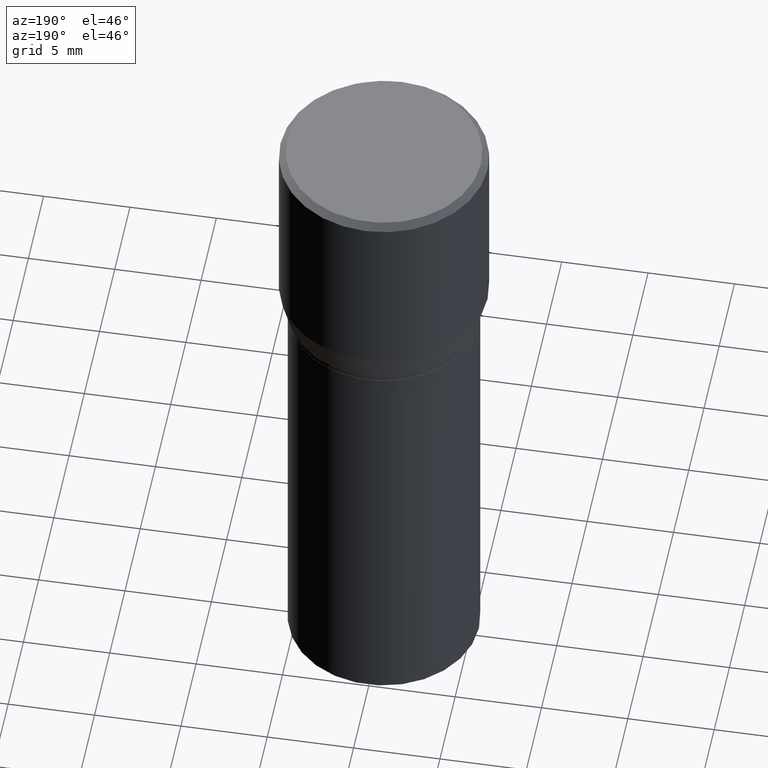
[diagram: clean part render]
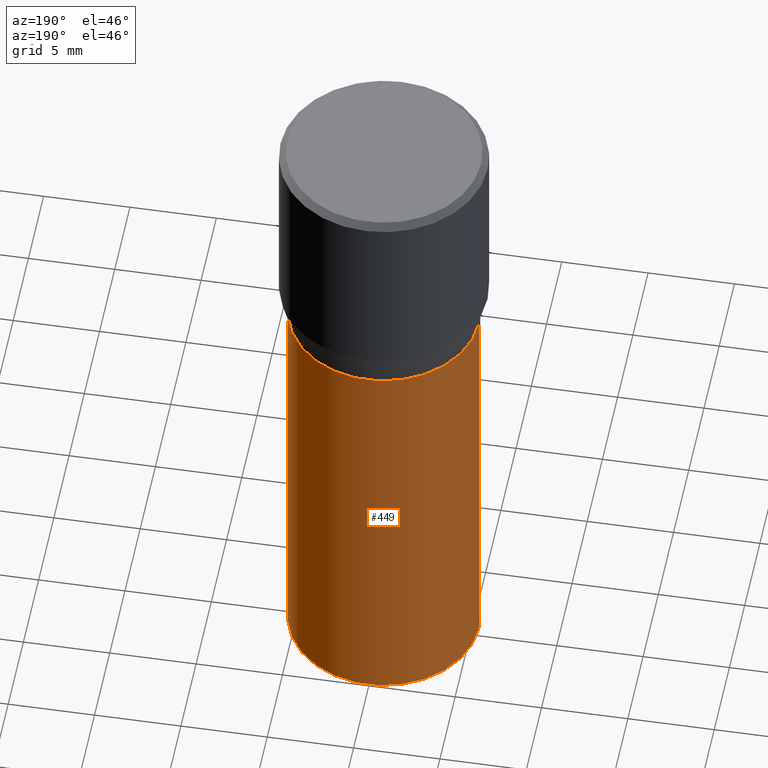
[diagram: same view with one face highlighted and labeled with its STEP entity id]
A machine part, auxiliary view. The second image highlights one B-rep face of the part: STEP entity #449.
In plain terms, the highlighted cylindrical surface (partial cylindrical patch) has radius 5.5004 mm, axis along (-0, 0, 1).
Its self-contained STEP definition (entity closure, byte-faithful):
#44 = CARTESIAN_POINT ( 'NONE',  ( -0.2165500000000000203, -1.980209173064567670E-15, -1.500000000000000222 ) ) ;
#53 = LINE ( 'NONE', #443, #122 ) ;
#72 = CARTESIAN_POINT ( 'NONE',  ( 0.2165500000000000203, -3.312717494294371784E-15, -0.5157000000000001583 ) ) ;
#96 = LINE ( 'NONE', #104, #196 ) ;
#104 = CARTESIAN_POINT ( 'NONE',  ( -0.2165500000000000203, 1.538680294288497096E-15, -1.065195393794699923E-29 ) ) ;
#119 = CIRCLE ( 'NONE', #173, 0.2165500000000000203 ) ;
#122 = VECTOR ( 'NONE', #447, 39.37007874015748143 ) ;
#138 = EDGE_CURVE ( 'NONE', #428, #358, #96, .T. ) ;
#146 = CARTESIAN_POINT ( 'NONE',  ( 3.668203209277704895E-29, -5.237222008264718177E-15, -1.500000000000000222 ) ) ;
#148 = DIRECTION ( 'NONE',  ( -2.445468806185136597E-29, 3.491481338843145583E-15, 1.000000000000000000 ) ) ;
#158 = AXIS2_PLACEMENT_3D ( 'NONE', #191, #166, #292 ) ;
#159 = ORIENTED_EDGE ( 'NONE', *, *, #416, .F. ) ;
#166 = DIRECTION ( 'NONE',  ( -2.445468806185136597E-29, 3.491481338843145583E-15, 1.000000000000000000 ) ) ;
#167 = EDGE_CURVE ( 'NONE', #448, #428, #119, .T. ) ;
#173 = AXIS2_PLACEMENT_3D ( 'NONE', #146, #368, #362 ) ;
#191 = CARTESIAN_POINT ( 'NONE',  ( 1.261128263349675426E-29, -1.800556926441410962E-15, -0.5157000000000001583 ) ) ;
#196 = VECTOR ( 'NONE', #232, 39.37007874015748143 ) ;
#197 = ORIENTED_EDGE ( 'NONE', *, *, #167, .T. ) ;
#232 = DIRECTION ( 'NONE',  ( -2.445468806185136877E-29, 3.491481338843145188E-15, 1.000000000000000000 ) ) ;
#254 = DIRECTION ( 'NONE',  ( 1.000000000000000000, -6.982962677686266711E-15, 4.876176775795935793E-29 ) ) ;
#292 = DIRECTION ( 'NONE',  ( 1.000000000000000000, -6.982962677686265133E-15, 0.000000000000000000 ) ) ;
#294 = FACE_OUTER_BOUND ( 'NONE', #419, .T. ) ;
#299 = CARTESIAN_POINT ( 'NONE',  ( 0.000000000000000000, 0.000000000000000000, 0.000000000000000000 ) ) ;
#301 = EDGE_CURVE ( 'NONE', #448, #436, #53, .T. ) ;
#324 = CARTESIAN_POINT ( 'NONE',  ( 0.2165500000000000203, -6.749382576117678999E-15, -1.500000000000000222 ) ) ;
#358 = VERTEX_POINT ( 'NONE', #370 ) ;
#362 = DIRECTION ( 'NONE',  ( 1.000000000000000000, -6.982962677686264344E-15, 0.000000000000000000 ) ) ;
#368 = DIRECTION ( 'NONE',  ( -2.445468806185136597E-29, 3.491481338843145583E-15, 1.000000000000000000 ) ) ;
#370 = CARTESIAN_POINT ( 'NONE',  ( -0.2165500000000000203, -1.980209173064567670E-15, -0.5157000000000001583 ) ) ;
#373 = CIRCLE ( 'NONE', #158, 0.2165500000000000203 ) ;
#375 = CYLINDRICAL_SURFACE ( 'NONE', #432, 0.2165500000000000203 ) ;
#395 = ORIENTED_EDGE ( 'NONE', *, *, #138, .T. ) ;
#399 = ORIENTED_EDGE ( 'NONE', *, *, #301, .F. ) ;
#416 = EDGE_CURVE ( 'NONE', #436, #358, #373, .T. ) ;
#419 = EDGE_LOOP ( 'NONE', ( #197, #395, #159, #399 ) ) ;
#428 = VERTEX_POINT ( 'NONE', #44 ) ;
#432 = AXIS2_PLACEMENT_3D ( 'NONE', #299, #148, #254 ) ;
#436 = VERTEX_POINT ( 'NONE', #72 ) ;
#443 = CARTESIAN_POINT ( 'NONE',  ( 0.2165500000000000203, -1.512160567852961217E-15, 1.055936080798610036E-29 ) ) ;
#447 = DIRECTION ( 'NONE',  ( -2.445468806185136877E-29, 3.491481338843145188E-15, 1.000000000000000000 ) ) ;
#448 = VERTEX_POINT ( 'NONE', #324 ) ;
#449 = ADVANCED_FACE ( 'NONE', ( #294 ), #375, .T. ) ;